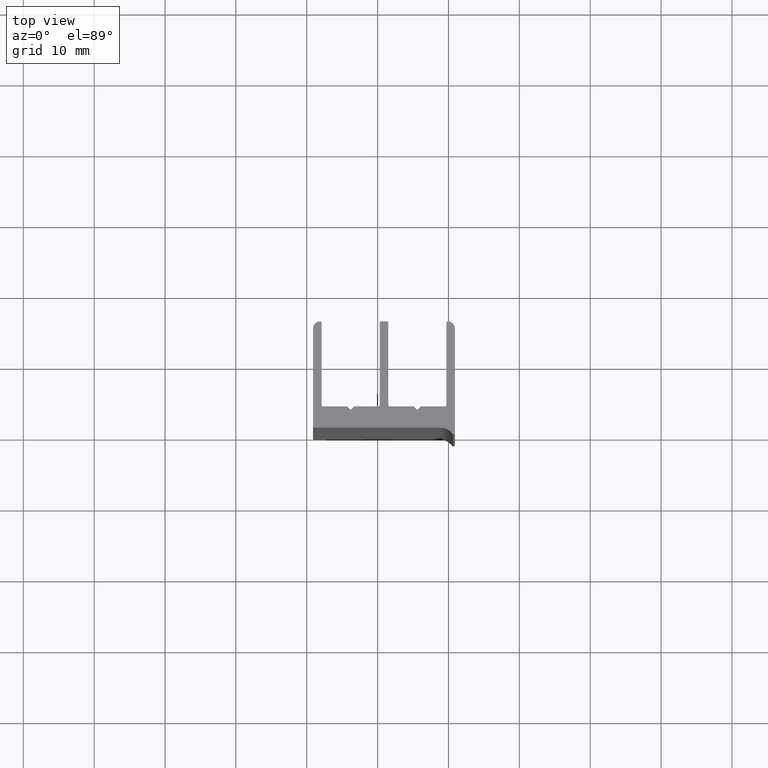
[diagram: clean part render]
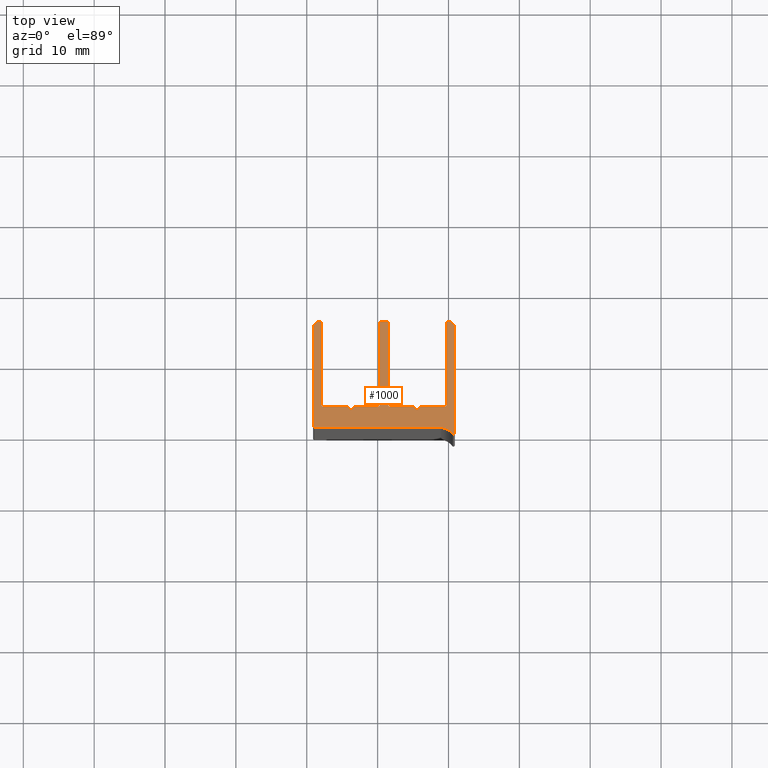
[diagram: same view with one face highlighted and labeled with its STEP entity id]
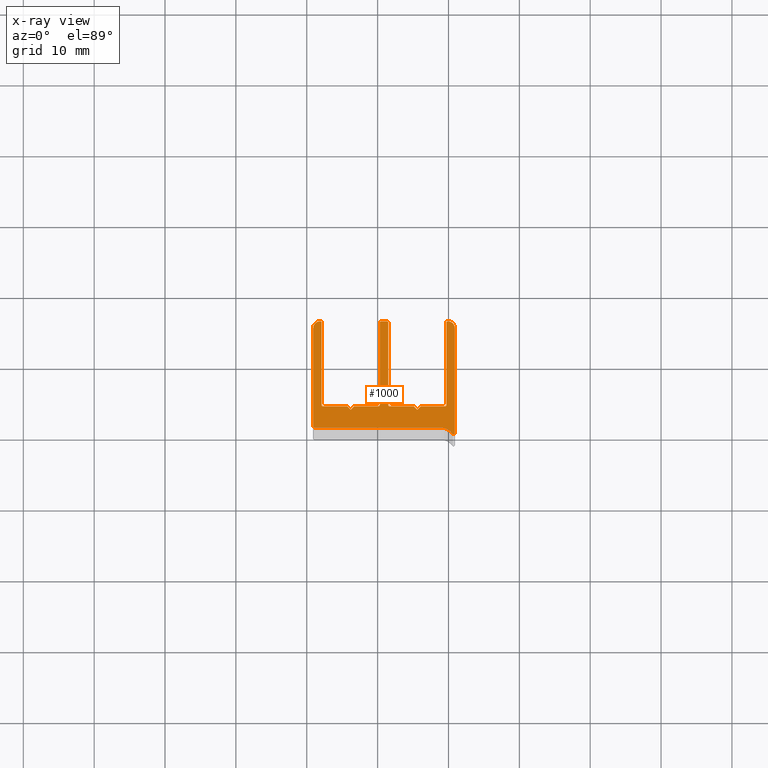
[diagram: x-ray of the same camera — body ghosted, the highlighted face saturated]
A machine part, top view. The second image highlights one B-rep face of the part: STEP entity #1000.
The next image is the same camera in x-ray: the body ghosted, the highlighted face saturated — about 0% of this face is hidden behind the body in this view.
In plain terms, the highlighted planar face has unit normal (0, 0, 1).
Its self-contained STEP definition (entity closure, byte-faithful):
#18=CARTESIAN_POINT('',(9.699999999999818,14.800000000000068,0.0));
#19=VERTEX_POINT('',#18);
#26=CARTESIAN_POINT('',(9.899999999999864,15.000000000000114,0.0));
#27=VERTEX_POINT('',#26);
#28=CARTESIAN_POINT('',(9.899999999999864,14.800000000000068,0.0));
#29=DIRECTION('',(0.0,0.0,1.0));
#30=DIRECTION('',(1.0,0.0,0.0));
#31=AXIS2_PLACEMENT_3D('',#28,#29,#30);
#32=CIRCLE('',#31,0.200000000000000);
#33=EDGE_CURVE('',#27,#19,#32,.T.);
#57=CARTESIAN_POINT('',(9.699999999999818,3.200000000000046,0.0));
#58=VERTEX_POINT('',#57);
#65=CARTESIAN_POINT('',(9.699999999999818,14.800000000000068,0.0));
#66=DIRECTION('',(0.0,-1.0,0.0));
#67=VECTOR('',#66,11.599999999999909);
#68=LINE('',#65,#67);
#69=EDGE_CURVE('',#19,#58,#68,.T.);
#89=CARTESIAN_POINT('',(9.499999999999773,3.000000000000114,0.0));
#90=VERTEX_POINT('',#89);
#97=CARTESIAN_POINT('',(9.499999999999773,3.200000000000046,0.0));
#98=DIRECTION('',(0.0,0.0,-1.0));
#99=DIRECTION('',(1.0,0.0,0.0));
#100=AXIS2_PLACEMENT_3D('',#97,#98,#99);
#101=CIRCLE('',#100,0.200000000000000);
#102=EDGE_CURVE('',#58,#90,#101,.T.);
#121=CARTESIAN_POINT('',(6.099999999999909,3.0,0.0));
#122=VERTEX_POINT('',#121);
#129=CARTESIAN_POINT('',(9.499999999999773,3.000000000000114,0.0));
#130=DIRECTION('',(-1.0,0.0,0.0));
#131=VECTOR('',#130,3.399999999999864);
#132=LINE('',#129,#131);
#133=EDGE_CURVE('',#90,#122,#132,.T.);
#152=CARTESIAN_POINT('',(5.599999999999909,2.500000000000114,0.0));
#153=VERTEX_POINT('',#152);
#160=CARTESIAN_POINT('',(6.099999999999909,3.0,0.0));
#161=DIRECTION('',(-0.707106781186628,-0.707106781186467,0.0));
#162=VECTOR('',#161,0.707106781186467);
#163=LINE('',#160,#162);
#164=EDGE_CURVE('',#122,#153,#163,.T.);
#183=CARTESIAN_POINT('',(5.099999999999909,3.0,0.0));
#184=VERTEX_POINT('',#183);
#191=CARTESIAN_POINT('',(5.599999999999909,2.500000000000114,0.0));
#192=DIRECTION('',(-0.707106781186628,0.707106781186467,0.0));
#193=VECTOR('',#192,0.707106781186467);
#194=LINE('',#191,#193);
#195=EDGE_CURVE('',#153,#184,#194,.T.);
#214=CARTESIAN_POINT('',(1.699999999999818,3.0,0.0));
#215=VERTEX_POINT('',#214);
#222=CARTESIAN_POINT('',(5.099999999999909,3.0,0.0));
#223=DIRECTION('',(-1.0,0.0,0.0));
#224=VECTOR('',#223,3.400000000000091);
#225=LINE('',#222,#224);
#226=EDGE_CURVE('',#184,#215,#225,.T.);
#246=CARTESIAN_POINT('',(1.499999999999773,3.200000000000046,0.0));
#247=VERTEX_POINT('',#246);
#254=CARTESIAN_POINT('',(1.699999999999818,3.200000000000046,0.0));
#255=DIRECTION('',(0.0,0.0,-1.0));
#256=DIRECTION('',(1.0,0.0,0.0));
#257=AXIS2_PLACEMENT_3D('',#254,#255,#256);
#258=CIRCLE('',#257,0.200000000000000);
#259=EDGE_CURVE('',#215,#247,#258,.T.);
#278=CARTESIAN_POINT('',(1.500000000000000,14.800000000000182,0.0));
#279=VERTEX_POINT('',#278);
#286=CARTESIAN_POINT('',(1.499999999999773,3.200000000000046,0.0));
#287=DIRECTION('',(0.0,1.0,0.0));
#288=VECTOR('',#287,11.600000000000136);
#289=LINE('',#286,#288);
#290=EDGE_CURVE('',#247,#279,#289,.T.);
#310=CARTESIAN_POINT('',(1.299999999999955,15.000000000000341,0.0));
#311=VERTEX_POINT('',#310);
#318=CARTESIAN_POINT('',(1.299999999999955,14.800000000000182,0.0));
#319=DIRECTION('',(0.0,0.0,1.0));
#320=DIRECTION('',(1.0,0.0,0.0));
#321=AXIS2_PLACEMENT_3D('',#318,#319,#320);
#322=CIRCLE('',#321,0.200000000000000);
#323=EDGE_CURVE('',#279,#311,#322,.T.);
#342=CARTESIAN_POINT('',(0.499999999999773,15.0,0.0));
#343=VERTEX_POINT('',#342);
#350=CARTESIAN_POINT('',(1.299999999999955,15.000000000000341,0.0));
#351=DIRECTION('',(-1.0,-2.842171E-013,0.0));
#352=VECTOR('',#351,0.800000000000182);
#353=LINE('',#350,#352);
#354=EDGE_CURVE('',#311,#343,#353,.T.);
#374=CARTESIAN_POINT('',(0.299999999999955,14.799999999999955,0.0));
#375=VERTEX_POINT('',#374);
#382=CARTESIAN_POINT('',(0.499999999999773,14.799999999999955,0.0));
#383=DIRECTION('',(0.0,0.0,1.0));
#384=DIRECTION('',(1.0,0.0,0.0));
#385=AXIS2_PLACEMENT_3D('',#382,#383,#384);
#386=CIRCLE('',#385,0.200000000000000);
#387=EDGE_CURVE('',#343,#375,#386,.T.);
#406=CARTESIAN_POINT('',(0.299999999999955,3.200000000000046,0.0));
#407=VERTEX_POINT('',#406);
#414=CARTESIAN_POINT('',(0.299999999999955,14.799999999999955,0.0));
#415=DIRECTION('',(0.0,-1.0,0.0));
#416=VECTOR('',#415,11.599999999999909);
#417=LINE('',#414,#416);
#418=EDGE_CURVE('',#375,#407,#417,.T.);
#438=CARTESIAN_POINT('',(0.099999999999909,3.000000000000227,0.0));
#439=VERTEX_POINT('',#438);
#446=CARTESIAN_POINT('',(0.099999999999909,3.200000000000046,0.0));
#447=DIRECTION('',(0.0,0.0,-1.0));
#448=DIRECTION('',(1.0,0.0,0.0));
#449=AXIS2_PLACEMENT_3D('',#446,#447,#448);
#450=CIRCLE('',#449,0.200000000000000);
#451=EDGE_CURVE('',#407,#439,#450,.T.);
#470=CARTESIAN_POINT('',(-3.300000000000182,3.000000000000114,0.0));
#471=VERTEX_POINT('',#470);
#478=CARTESIAN_POINT('',(0.099999999999909,3.000000000000227,0.0));
#479=DIRECTION('',(-1.0,0.0,0.0));
#480=VECTOR('',#479,3.400000000000091);
#481=LINE('',#478,#480);
#482=EDGE_CURVE('',#439,#471,#481,.T.);
#501=CARTESIAN_POINT('',(-3.800000000000182,2.500000000000227,0.0));
#502=VERTEX_POINT('',#501);
#509=CARTESIAN_POINT('',(-3.300000000000182,3.000000000000114,0.0));
#510=DIRECTION('',(-0.707106781186628,-0.707106781186467,0.0));
#511=VECTOR('',#510,0.707106781186467);
#512=LINE('',#509,#511);
#513=EDGE_CURVE('',#471,#502,#512,.T.);
#532=CARTESIAN_POINT('',(-4.300000000000182,3.000000000000114,0.0));
#533=VERTEX_POINT('',#532);
#540=CARTESIAN_POINT('',(-3.800000000000182,2.500000000000227,0.0));
#541=DIRECTION('',(-0.707106781186628,0.707106781186467,0.0));
#542=VECTOR('',#541,0.707106781186467);
#543=LINE('',#540,#542);
#544=EDGE_CURVE('',#502,#533,#543,.T.);
#563=CARTESIAN_POINT('',(-7.700000000000046,3.000000000000114,0.0));
#564=VERTEX_POINT('',#563);
#571=CARTESIAN_POINT('',(-4.300000000000182,3.000000000000114,0.0));
#572=DIRECTION('',(-1.0,0.0,0.0));
#573=VECTOR('',#572,3.399999999999864);
#574=LINE('',#571,#573);
#575=EDGE_CURVE('',#533,#564,#574,.T.);
#595=CARTESIAN_POINT('',(-7.900000000000091,3.200000000000159,0.0));
#596=VERTEX_POINT('',#595);
#603=CARTESIAN_POINT('',(-7.700000000000046,3.200000000000159,0.0));
#604=DIRECTION('',(0.0,0.0,-1.0));
#605=DIRECTION('',(1.0,0.0,0.0));
#606=AXIS2_PLACEMENT_3D('',#603,#604,#605);
#607=CIRCLE('',#606,0.200000000000000);
#608=EDGE_CURVE('',#564,#596,#607,.T.);
#627=CARTESIAN_POINT('',(-7.900000000000091,14.800000000000068,0.0));
#628=VERTEX_POINT('',#627);
#635=CARTESIAN_POINT('',(-7.900000000000091,3.200000000000159,0.0));
#636=DIRECTION('',(0.0,1.0,0.0));
#637=VECTOR('',#636,11.599999999999909);
#638=LINE('',#635,#637);
#639=EDGE_CURVE('',#596,#628,#638,.T.);
#659=CARTESIAN_POINT('',(-8.100000000000136,15.000000000000227,0.0));
#660=VERTEX_POINT('',#659);
#667=CARTESIAN_POINT('',(-8.100000000000136,14.800000000000068,0.0));
#668=DIRECTION('',(0.0,0.0,1.0));
#669=DIRECTION('',(1.0,0.0,0.0));
#670=AXIS2_PLACEMENT_3D('',#667,#668,#669);
#671=CIRCLE('',#670,0.200000000000000);
#672=EDGE_CURVE('',#628,#660,#671,.T.);
#692=CARTESIAN_POINT('',(-9.100000000000136,14.000000000000227,0.0));
#693=VERTEX_POINT('',#692);
#700=CARTESIAN_POINT('',(-8.100000000000136,14.000000000000227,0.0));
#701=DIRECTION('',(0.0,0.0,1.0));
#702=DIRECTION('',(1.0,0.0,0.0));
#703=AXIS2_PLACEMENT_3D('',#700,#701,#702);
#704=CIRCLE('',#703,1.0);
#705=EDGE_CURVE('',#660,#693,#704,.T.);
#724=CARTESIAN_POINT('',(-9.100000000000136,0.200000000000045,0.0));
#725=VERTEX_POINT('',#724);
#732=CARTESIAN_POINT('',(-9.100000000000136,14.000000000000227,0.0));
#733=DIRECTION('',(0.0,-1.0,0.0));
#734=VECTOR('',#733,13.800000000000182);
#735=LINE('',#732,#734);
#736=EDGE_CURVE('',#693,#725,#735,.T.);
#756=CARTESIAN_POINT('',(-8.900000000000091,0.0,0.0));
#757=VERTEX_POINT('',#756);
#764=CARTESIAN_POINT('',(-8.900000000000091,0.200000000000045,0.0));
#765=DIRECTION('',(0.0,0.0,1.0));
#766=DIRECTION('',(1.0,0.0,0.0));
#767=AXIS2_PLACEMENT_3D('',#764,#765,#766);
#768=CIRCLE('',#767,0.200000000000000);
#769=EDGE_CURVE('',#725,#757,#768,.T.);
#788=CARTESIAN_POINT('',(8.899999999999864,2.273737E-013,0.0));
#789=VERTEX_POINT('',#788);
#796=CARTESIAN_POINT('',(-8.900000000000091,0.0,0.0));
#797=DIRECTION('',(1.0,0.0,0.0));
#798=VECTOR('',#797,17.799999999999955);
#799=LINE('',#796,#798);
#800=EDGE_CURVE('',#757,#789,#799,.T.);
#820=CARTESIAN_POINT('',(10.536363636363376,-0.850080850847689,0.0));
#821=VERTEX_POINT('',#820);
#828=CARTESIAN_POINT('',(8.899999999999864,-1.999999999999773,0.0));
#829=DIRECTION('',(0.0,0.0,-1.0));
#830=DIRECTION('',(1.0,0.0,0.0));
#831=AXIS2_PLACEMENT_3D('',#828,#829,#830);
#832=CIRCLE('',#831,2.0);
#833=EDGE_CURVE('',#789,#821,#832,.T.);
#853=CARTESIAN_POINT('',(10.899999999999864,-0.735088935932367,0.0));
#854=VERTEX_POINT('',#853);
#861=CARTESIAN_POINT('',(10.699999999999818,-0.735088935932367,0.0));
#862=DIRECTION('',(0.0,0.0,1.0));
#863=DIRECTION('',(1.0,0.0,0.0));
#864=AXIS2_PLACEMENT_3D('',#861,#862,#863);
#865=CIRCLE('',#864,0.200000000000050);
#866=EDGE_CURVE('',#821,#854,#865,.T.);
#885=CARTESIAN_POINT('',(10.899999999999864,14.000000000000227,0.0));
#886=VERTEX_POINT('',#885);
#893=CARTESIAN_POINT('',(10.899999999999864,-0.735088935932367,0.0));
#894=DIRECTION('',(0.0,1.0,0.0));
#895=VECTOR('',#894,14.735088935932595);
#896=LINE('',#893,#895);
#897=EDGE_CURVE('',#854,#886,#896,.T.);
#916=CARTESIAN_POINT('',(9.899999999999864,14.000000000000227,0.0));
#917=DIRECTION('',(0.0,0.0,1.0));
#918=DIRECTION('',(1.0,0.0,0.0));
#919=AXIS2_PLACEMENT_3D('',#916,#917,#918);
#920=CIRCLE('',#919,1.0);
#921=EDGE_CURVE('',#886,#27,#920,.T.);
#964=CARTESIAN_POINT('',(-11.100120005143708,-2.528717834718009,0.0));
#965=DIRECTION('',(0.0,0.0,1.0));
#966=DIRECTION('',(1.0,0.0,0.0));
#967=AXIS2_PLACEMENT_3D('',#964,#965,#966);
#968=PLANE('',#967);
#969=ORIENTED_EDGE('',*,*,#33,.T.);
#970=ORIENTED_EDGE('',*,*,#69,.T.);
#971=ORIENTED_EDGE('',*,*,#102,.T.);
#972=ORIENTED_EDGE('',*,*,#133,.T.);
#973=ORIENTED_EDGE('',*,*,#164,.T.);
#974=ORIENTED_EDGE('',*,*,#195,.T.);
#975=ORIENTED_EDGE('',*,*,#226,.T.);
#976=ORIENTED_EDGE('',*,*,#259,.T.);
#977=ORIENTED_EDGE('',*,*,#290,.T.);
#978=ORIENTED_EDGE('',*,*,#323,.T.);
#979=ORIENTED_EDGE('',*,*,#354,.T.);
#980=ORIENTED_EDGE('',*,*,#387,.T.);
#981=ORIENTED_EDGE('',*,*,#418,.T.);
#982=ORIENTED_EDGE('',*,*,#451,.T.);
#983=ORIENTED_EDGE('',*,*,#482,.T.);
#984=ORIENTED_EDGE('',*,*,#513,.T.);
#985=ORIENTED_EDGE('',*,*,#544,.T.);
#986=ORIENTED_EDGE('',*,*,#575,.T.);
#987=ORIENTED_EDGE('',*,*,#608,.T.);
#988=ORIENTED_EDGE('',*,*,#639,.T.);
#989=ORIENTED_EDGE('',*,*,#672,.T.);
#990=ORIENTED_EDGE('',*,*,#705,.T.);
#991=ORIENTED_EDGE('',*,*,#736,.T.);
#992=ORIENTED_EDGE('',*,*,#769,.T.);
#993=ORIENTED_EDGE('',*,*,#800,.T.);
#994=ORIENTED_EDGE('',*,*,#833,.T.);
#995=ORIENTED_EDGE('',*,*,#866,.T.);
#996=ORIENTED_EDGE('',*,*,#897,.T.);
#997=ORIENTED_EDGE('',*,*,#921,.T.);
#998=EDGE_LOOP('',(#969,#970,#971,#972,#973,#974,#975,#976,#977,#978,#979,#980,#981,#982,#983,#984,#985,#986,#987,#988,#989,#990,#991,#992,#993,#994,#995,#996,#997));
#999=FACE_OUTER_BOUND('',#998,.T.);
#1000=ADVANCED_FACE('',(#999),#968,.T.);